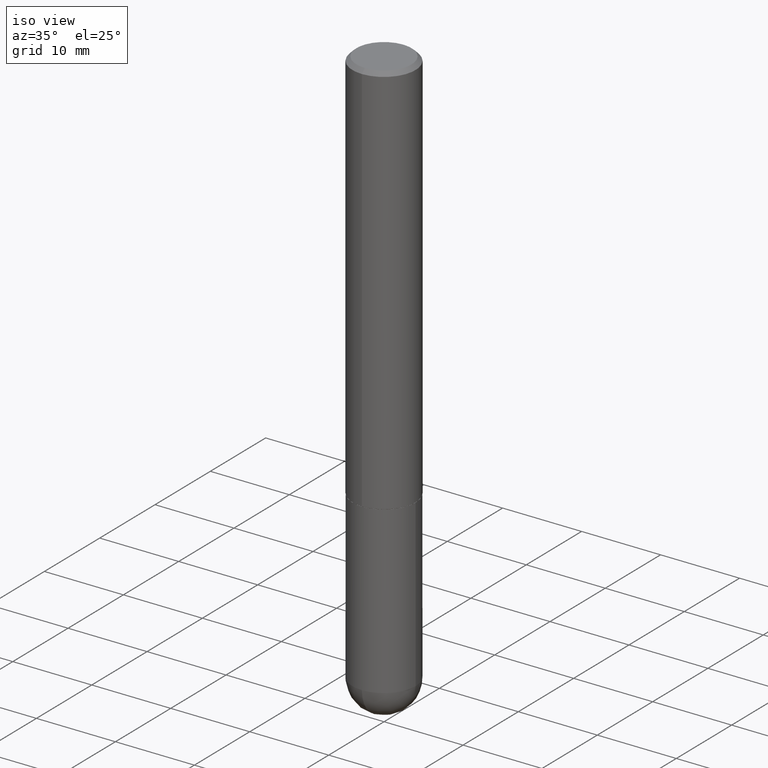
[diagram: clean part render]
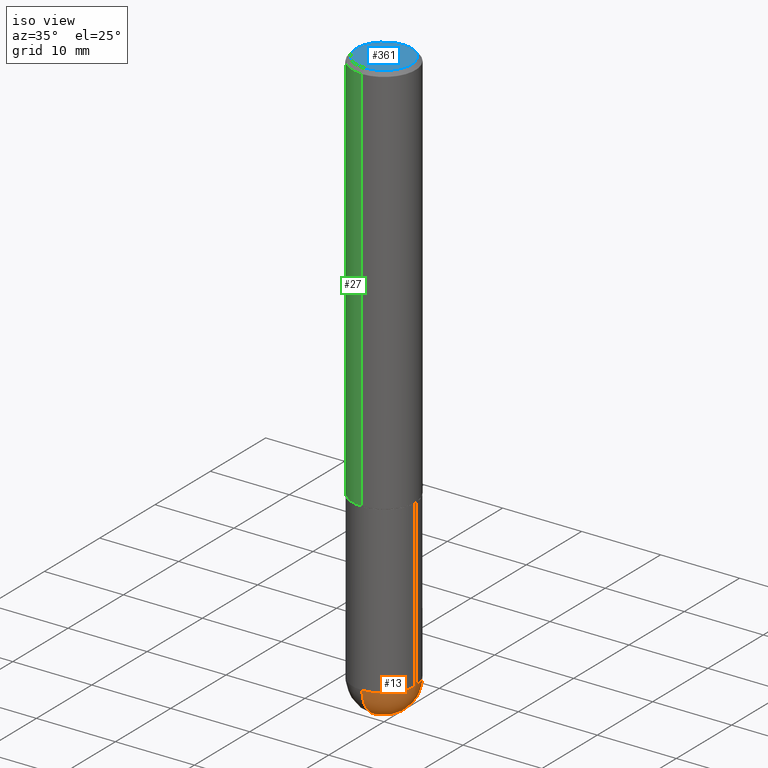
[diagram: same view with three faces highlighted in distinct colors, each labeled with its STEP entity id]
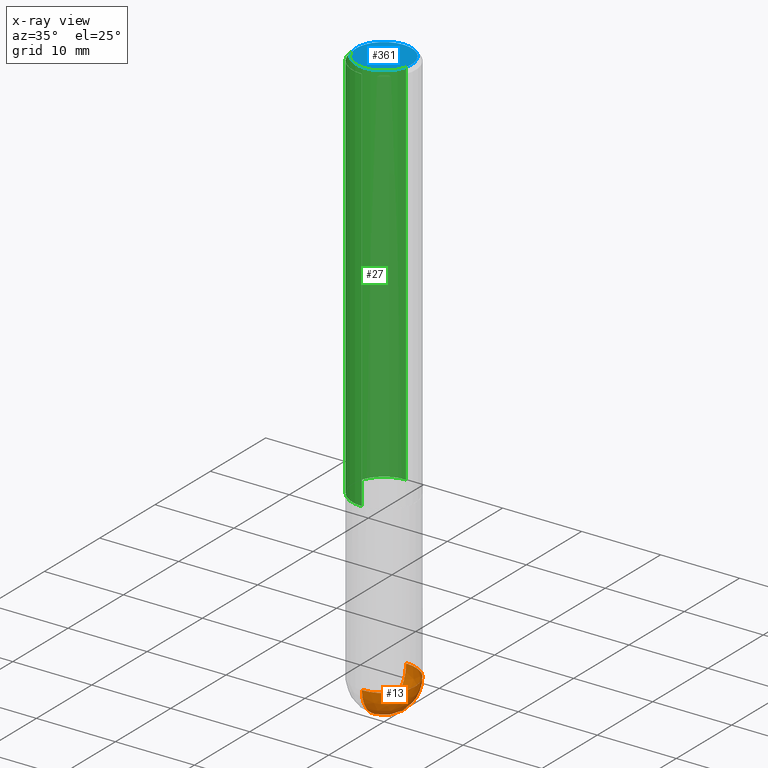
[diagram: x-ray of the same camera — body ghosted, the three highlighted faces saturated]
A machine part, iso view with three faces highlighted in distinct colors.
The next image is the same camera in x-ray (body ghosted, the three faces saturated) — at least one of them is partly hidden behind the body in this view.
Their STEP definitions:

[orange] entity #13 — the highlighted spherical surface has radius 4.0005 mm.
#13 = ADVANCED_FACE ( 'NONE', ( #74 ), #187, .T. ) ;
#19 = AXIS2_PLACEMENT_3D ( 'NONE', #387, #230, #167 ) ;
#26 = AXIS2_PLACEMENT_3D ( 'NONE', #221, #263, #116 ) ;
#31 = CIRCLE ( 'NONE', #265, 0.1575000000000003064 ) ;
#36 = CARTESIAN_POINT ( 'NONE',  ( 1.099816621735654731E-15, 0.1574999999999901201, -2.795300000000000118 ) ) ;
#41 = DIRECTION ( 'NONE',  ( -2.445468806185136597E-29, 3.491481338843145583E-15, 1.000000000000000000 ) ) ;
#45 = ORIENTED_EDGE ( 'NONE', *, *, #380, .F. ) ;
#59 = VERTEX_POINT ( 'NONE', #383 ) ;
#74 = FACE_OUTER_BOUND ( 'NONE', #121, .T. ) ;
#111 = VERTEX_POINT ( 'NONE', #238 ) ;
#116 = DIRECTION ( 'NONE',  ( 6.982962677686265922E-15, 1.000000000000000000, -3.469013325287946588E-15 ) ) ;
#117 = DIRECTION ( 'NONE',  ( 1.000000000000000000, -6.982962677686265922E-15, 4.883557194083112340E-29 ) ) ;
#121 = EDGE_LOOP ( 'NONE', ( #45, #270, #406, #131 ) ) ;
#131 = ORIENTED_EDGE ( 'NONE', *, *, #337, .F. ) ;
#163 = CIRCLE ( 'NONE', #284, 0.1575000000000003064 ) ;
#165 = DIRECTION ( 'NONE',  ( 1.000000000000000000, -6.982962677686261977E-15, 0.000000000000000000 ) ) ;
#167 = DIRECTION ( 'NONE',  ( 1.000000000000000000, -6.982962677686261977E-15, 0.000000000000000000 ) ) ;
#168 = VERTEX_POINT ( 'NONE', #172 ) ;
#172 = CARTESIAN_POINT ( 'NONE',  ( 0.1575000000000000011, -9.416176022726072770E-15, -2.795299999999999674 ) ) ;
#174 = CIRCLE ( 'NONE', #365, 0.1575000000000000011 ) ;
#187 = SPHERICAL_SURFACE ( 'NONE', #26, 0.1575000000000003064 ) ;
#201 = DIRECTION ( 'NONE',  ( -7.105427357601000281E-15, -1.000000000000000000, 0.000000000000000000 ) ) ;
#221 = CARTESIAN_POINT ( 'NONE',  ( 6.504699176015425459E-29, -1.023392015460829390E-14, -2.795299999999999674 ) ) ;
#227 = CARTESIAN_POINT ( 'NONE',  ( 6.504699176015425459E-29, -1.023392015460829390E-14, -2.795299999999999674 ) ) ;
#230 = DIRECTION ( 'NONE',  ( -2.445468806185136597E-29, 3.491481338843145583E-15, 1.000000000000000000 ) ) ;
#237 = EDGE_CURVE ( 'NONE', #59, #340, #31, .T. ) ;
#238 = CARTESIAN_POINT ( 'NONE',  ( -1.119104808822091931E-15, -0.1575000000000101319, -2.795299999999998786 ) ) ;
#250 = CIRCLE ( 'NONE', #19, 0.1575000000000000011 ) ;
#262 = CARTESIAN_POINT ( 'NONE',  ( 6.835818953929311707E-29, -9.759737786468243605E-15, -2.795299999999999674 ) ) ;
#263 = DIRECTION ( 'NONE',  ( -1.000000000000000000, 6.982962677686265922E-15, -4.883557194083112901E-29 ) ) ;
#265 = AXIS2_PLACEMENT_3D ( 'NONE', #268, #117, #403 ) ;
#268 = CARTESIAN_POINT ( 'NONE',  ( 6.504699176015425459E-29, -1.023392015460829390E-14, -2.795299999999999674 ) ) ;
#270 = ORIENTED_EDGE ( 'NONE', *, *, #237, .T. ) ;
#284 = AXIS2_PLACEMENT_3D ( 'NONE', #227, #355, #201 ) ;
#337 = EDGE_CURVE ( 'NONE', #111, #168, #174, .T. ) ;
#340 = VERTEX_POINT ( 'NONE', #36 ) ;
#355 = DIRECTION ( 'NONE',  ( -1.000000000000000000, 7.105427357601001070E-15, -4.926315508542082329E-29 ) ) ;
#365 = AXIS2_PLACEMENT_3D ( 'NONE', #262, #41, #165 ) ;
#374 = EDGE_CURVE ( 'NONE', #168, #340, #250, .T. ) ;
#380 = EDGE_CURVE ( 'NONE', #59, #111, #163, .T. ) ;
#383 = CARTESIAN_POINT ( 'NONE',  ( 6.896594947516873652E-29, -1.077418437193280573E-14, -2.952799999999999869 ) ) ;
#387 = CARTESIAN_POINT ( 'NONE',  ( 6.835818953929311707E-29, -9.759737786468243605E-15, -2.795299999999999674 ) ) ;
#403 = DIRECTION ( 'NONE',  ( 6.982962677686265133E-15, 1.000000000000000000, 0.000000000000000000 ) ) ;
#406 = ORIENTED_EDGE ( 'NONE', *, *, #374, .F. ) ;

[blue] entity #361 — the highlighted planar face has unit normal (0, -0, -1).
#4 = DIRECTION ( 'NONE',  ( -2.454661074152089475E-29, 3.478317487923067824E-15, 1.000000000000000000 ) ) ;
#7 = CARTESIAN_POINT ( 'NONE',  ( 6.730951768431413431E-46, -9.537930711916713162E-32, -2.742110444211316312E-17 ) ) ;
#16 = DIRECTION ( 'NONE',  ( -6.982962677686264344E-15, -1.000000000000000000, 3.478317487923067824E-15 ) ) ;
#32 = AXIS2_PLACEMENT_3D ( 'NONE', #83, #384, #331 ) ;
#44 = FACE_OUTER_BOUND ( 'NONE', #352, .T. ) ;
#46 = CARTESIAN_POINT ( 'NONE',  ( -1.011923454671300448E-15, -0.1375000000000000111, 4.508475501473086973E-16 ) ) ;
#73 = EDGE_CURVE ( 'NONE', #313, #147, #90, .T. ) ;
#83 = CARTESIAN_POINT ( 'NONE',  ( 9.601573681818614755E-16, 0.1375000000000000111, -4.919792068104783803E-16 ) ) ;
#90 = CIRCLE ( 'NONE', #217, 0.1375000000000000111 ) ;
#108 = DIRECTION ( 'NONE',  ( -6.982962677686264344E-15, -1.000000000000000000, 3.478317487923067824E-15 ) ) ;
#122 = EDGE_CURVE ( 'NONE', #147, #313, #149, .T. ) ;
#132 = CARTESIAN_POINT ( 'NONE',  ( 1.029986994958724182E-15, 0.1375000000000000111, -5.056897590315349742E-16 ) ) ;
#147 = VERTEX_POINT ( 'NONE', #46 ) ;
#149 = CIRCLE ( 'NONE', #323, 0.1375000000000000111 ) ;
#169 = CARTESIAN_POINT ( 'NONE',  ( 6.730951768431413431E-46, -9.537930711916713162E-32, -2.742110444211316312E-17 ) ) ;
#204 = PLANE ( 'NONE',  #32 ) ;
#217 = AXIS2_PLACEMENT_3D ( 'NONE', #7, #4, #108 ) ;
#313 = VERTEX_POINT ( 'NONE', #132 ) ;
#323 = AXIS2_PLACEMENT_3D ( 'NONE', #169, #327, #16 ) ;
#327 = DIRECTION ( 'NONE',  ( -2.454661074152089475E-29, 3.478317487923067824E-15, 1.000000000000000000 ) ) ;
#331 = DIRECTION ( 'NONE',  ( 6.982962677686265922E-15, 1.000000000000000000, -3.478317487923067824E-15 ) ) ;
#342 = ORIENTED_EDGE ( 'NONE', *, *, #122, .T. ) ;
#352 = EDGE_LOOP ( 'NONE', ( #402, #342 ) ) ;
#361 = ADVANCED_FACE ( 'NONE', ( #44 ), #204, .F. ) ;
#384 = DIRECTION ( 'NONE',  ( 2.454661074152089195E-29, -3.478317487923067824E-15, -1.000000000000000000 ) ) ;
#402 = ORIENTED_EDGE ( 'NONE', *, *, #73, .T. ) ;

[green] entity #27 — the highlighted cylindrical surface (partial cylindrical patch) has radius 4.0005 mm, axis along (-0, 0, 1).
#15 = DIRECTION ( 'NONE',  ( -2.454661074152089475E-29, 3.478317487923067824E-15, 1.000000000000000000 ) ) ;
#27 = ADVANCED_FACE ( 'NONE', ( #373 ), #301, .T. ) ;
#29 = ORIENTED_EDGE ( 'NONE', *, *, #391, .T. ) ;
#52 = CARTESIAN_POINT ( 'NONE',  ( -1.099816621735539951E-15, -0.1575000000000070233, -1.967499999999999138 ) ) ;
#54 = CARTESIAN_POINT ( 'NONE',  ( 4.829545663394234809E-29, -6.843589657488634193E-15, -1.967499999999999805 ) ) ;
#63 = ORIENTED_EDGE ( 'NONE', *, *, #246, .T. ) ;
#84 = LINE ( 'NONE', #143, #141 ) ;
#89 = EDGE_LOOP ( 'NONE', ( #220, #63, #29, #128 ) ) ;
#95 = VERTEX_POINT ( 'NONE', #200 ) ;
#128 = ORIENTED_EDGE ( 'NONE', *, *, #223, .F. ) ;
#139 = VERTEX_POINT ( 'NONE', #360 ) ;
#141 = VECTOR ( 'NONE', #279, 39.37007874015748143 ) ;
#143 = CARTESIAN_POINT ( 'NONE',  ( 1.119104808822158195E-15, 0.1575000000000000844, -5.478350043478835531E-16 ) ) ;
#177 = DIRECTION ( 'NONE',  ( -2.454661074152089475E-29, 3.478317487923067824E-15, 1.000000000000000000 ) ) ;
#189 = CIRCLE ( 'NONE', #243, 0.1575000000000001954 ) ;
#200 = CARTESIAN_POINT ( 'NONE',  ( -1.080528434649015385E-15, -0.1575000000000000289, -0.01999999999999948694 ) ) ;
#205 = AXIS2_PLACEMENT_3D ( 'NONE', #293, #15, #316 ) ;
#211 = CIRCLE ( 'NONE', #351, 0.1574999999999999456 ) ;
#214 = EDGE_CURVE ( 'NONE', #407, #139, #84, .T. ) ;
#220 = ORIENTED_EDGE ( 'NONE', *, *, #214, .F. ) ;
#223 = EDGE_CURVE ( 'NONE', #139, #95, #211, .T. ) ;
#239 = DIRECTION ( 'NONE',  ( -6.982962677686265922E-15, -1.000000000000000000, 3.469013325287954477E-15 ) ) ;
#243 = AXIS2_PLACEMENT_3D ( 'NONE', #54, #177, #304 ) ;
#246 = EDGE_CURVE ( 'NONE', #407, #339, #189, .T. ) ;
#279 = DIRECTION ( 'NONE',  ( -2.454661074152089475E-29, 3.478317487923067824E-15, 1.000000000000000000 ) ) ;
#293 = CARTESIAN_POINT ( 'NONE',  ( 0.000000000000000000, 0.000000000000000000, 0.000000000000000000 ) ) ;
#301 = CYLINDRICAL_SURFACE ( 'NONE', #205, 0.1575000000000000844 ) ;
#304 = DIRECTION ( 'NONE',  ( -6.982962677686265922E-15, -1.000000000000000000, 3.469013325287948955E-15 ) ) ;
#316 = DIRECTION ( 'NONE',  ( -6.982962677686265922E-15, -1.000000000000000000, 3.478317487923068219E-15 ) ) ;
#328 = LINE ( 'NONE', #412, #396 ) ;
#333 = DIRECTION ( 'NONE',  ( -2.454661074152089475E-29, 3.478317487923067824E-15, 1.000000000000000000 ) ) ;
#339 = VERTEX_POINT ( 'NONE', #52 ) ;
#351 = AXIS2_PLACEMENT_3D ( 'NONE', #392, #333, #239 ) ;
#360 = CARTESIAN_POINT ( 'NONE',  ( 1.099816621735586889E-15, 0.1574999999999998901, -0.02000000000000057981 ) ) ;
#363 = CARTESIAN_POINT ( 'NONE',  ( 1.119104808822183044E-15, 0.1574999999999933675, -1.967500000000000249 ) ) ;
#373 = FACE_OUTER_BOUND ( 'NONE', #89, .T. ) ;
#379 = DIRECTION ( 'NONE',  ( -2.454661074152089475E-29, 3.478317487923067824E-15, 1.000000000000000000 ) ) ;
#391 = EDGE_CURVE ( 'NONE', #339, #95, #328, .T. ) ;
#392 = CARTESIAN_POINT ( 'NONE',  ( 4.909322148304186412E-31, -6.956634975846147087E-17, -0.02000000000000003511 ) ) ;
#396 = VECTOR ( 'NONE', #379, 39.37007874015748143 ) ;
#407 = VERTEX_POINT ( 'NONE', #363 ) ;
#412 = CARTESIAN_POINT ( 'NONE',  ( -1.099816621735587480E-15, -0.1575000000000000844, 5.478350043478835531E-16 ) ) ;